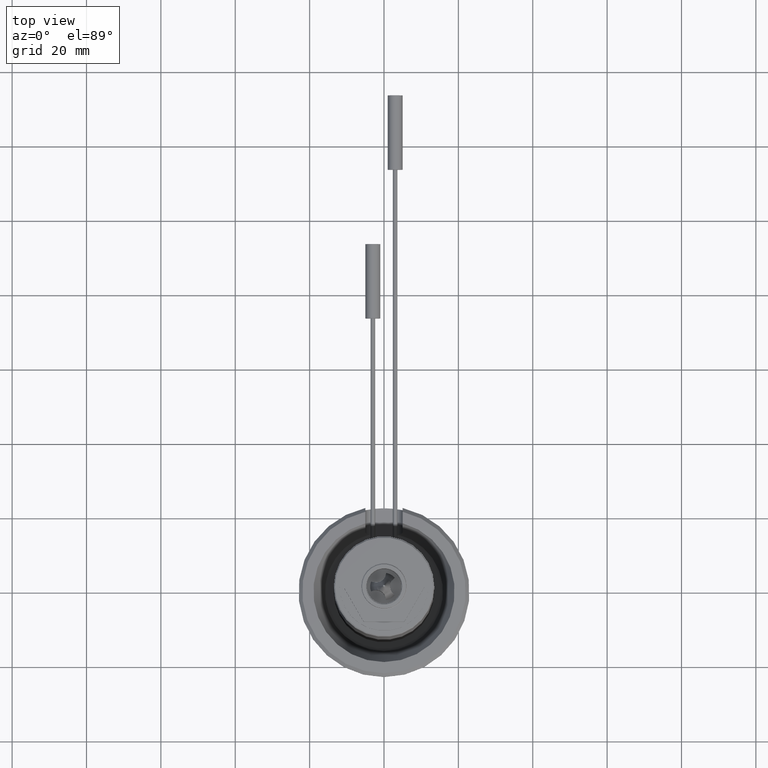
[diagram: clean part render]
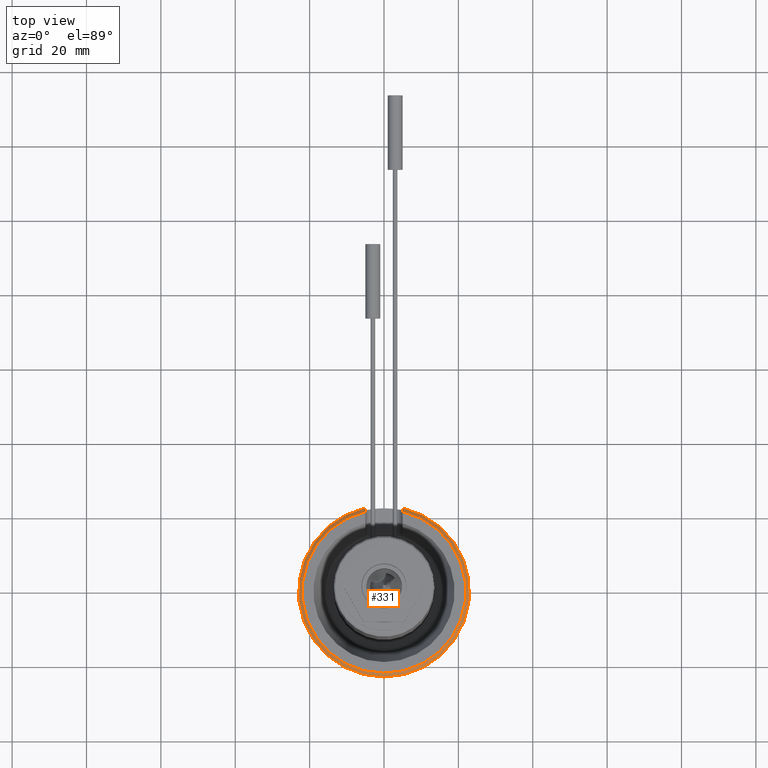
[diagram: same view with one face highlighted and labeled with its STEP entity id]
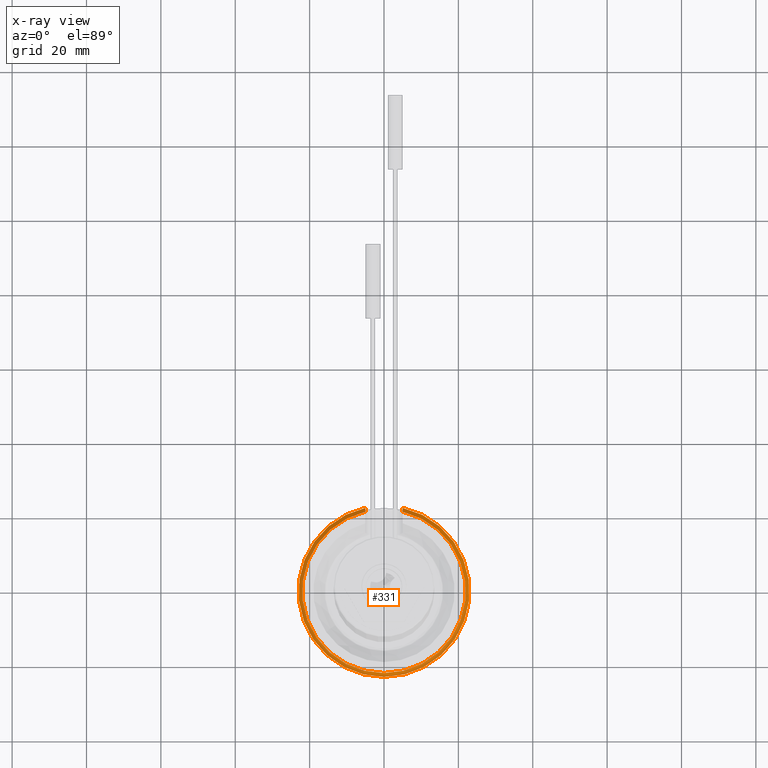
[diagram: x-ray of the same camera — body ghosted, the highlighted face saturated]
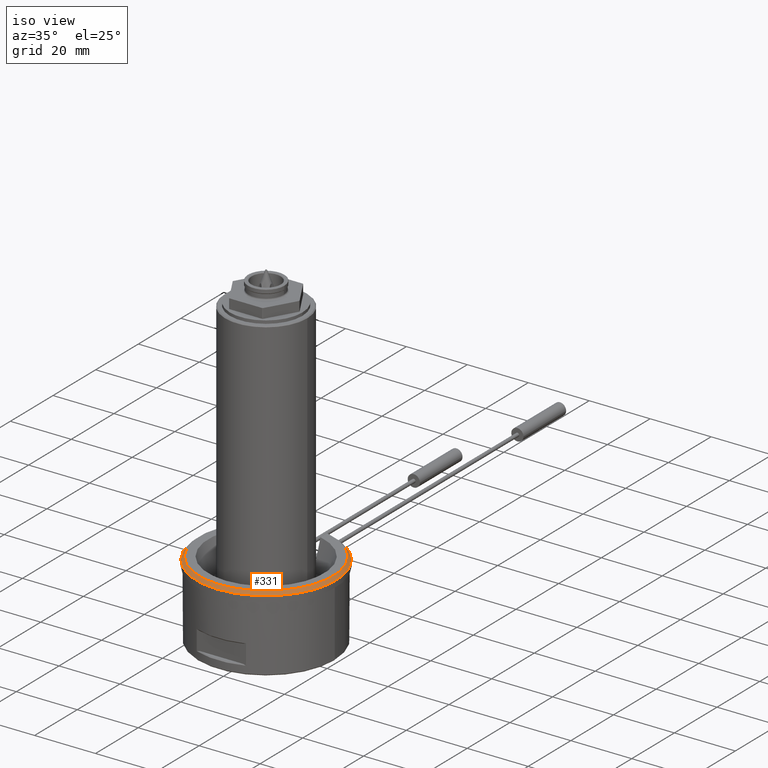
[diagram: same view with one face highlighted and labeled with its STEP entity id]
A machine part, top view. The second image highlights one B-rep face of the part: STEP entity #331.
The next image is the same camera in x-ray: the body ghosted, the highlighted face saturated — about 0% of this face is hidden behind the body in this view.
A second angle (iso view) of the same face is appended — the face is thin or edge-on in the first view.
In plain terms, the highlighted conical surface has half-angle 45 deg.
Its self-contained STEP definition (entity closure, byte-faithful):
#129=CONICAL_SURFACE('',#1237,22.,45.);
#151=B_SPLINE_CURVE_WITH_KNOTS('',3,(#2004,#2005,#2006,#2007),
 .UNSPECIFIED.,.F.,.F.,(4,4),(0.,1.),.UNSPECIFIED.);
#152=B_SPLINE_CURVE_WITH_KNOTS('',3,(#2010,#2011,#2012,#2013),
 .UNSPECIFIED.,.F.,.F.,(4,4),(0.,1.),.UNSPECIFIED.);
#260=FACE_OUTER_BOUND('',#519,.T.);
#331=ADVANCED_FACE('',(#260),#129,.T.);
#519=EDGE_LOOP('',(#775,#776,#777,#778));
#775=ORIENTED_EDGE('',*,*,#1019,.F.);
#776=ORIENTED_EDGE('',*,*,#954,.F.);
#777=ORIENTED_EDGE('',*,*,#1021,.F.);
#778=ORIENTED_EDGE('',*,*,#969,.F.);
#849=VERTEX_POINT('',#1792);
#851=VERTEX_POINT('',#1795);
#861=VERTEX_POINT('',#1874);
#862=VERTEX_POINT('',#1876);
#954=EDGE_CURVE('',#849,#851,#1055,.T.);
#969=EDGE_CURVE('',#861,#862,#1060,.T.);
#1019=EDGE_CURVE('',#851,#861,#151,.T.);
#1021=EDGE_CURVE('',#862,#849,#152,.T.);
#1055=CIRCLE('',#1157,23.);
#1060=CIRCLE('',#1166,22.);
#1157=AXIS2_PLACEMENT_3D('',#1794,#1373,#1374);
#1166=AXIS2_PLACEMENT_3D('',#1875,#1395,#1396);
#1237=AXIS2_PLACEMENT_3D('',#2031,#1552,#1553);
#1373=DIRECTION('',(0.,0.,-1.));
#1374=DIRECTION('',(-1.,0.,0.));
#1395=DIRECTION('',(0.,0.,1.));
#1396=DIRECTION('',(-1.,0.,0.));
#1552=DIRECTION('',(0.,0.,-1.));
#1553=DIRECTION('',(-1.,0.,0.));
#1792=CARTESIAN_POINT('',(4.99999999999504,22.4499443206448,24.));
#1794=CARTESIAN_POINT('',(0.,0.,24.));
#1795=CARTESIAN_POINT('',(-4.99999999999498,22.4499443206448,24.));
#1874=CARTESIAN_POINT('',(-4.99999999999501,21.4242852856297,25.));
#1875=CARTESIAN_POINT('',(0.,0.,25.));
#1876=CARTESIAN_POINT('',(4.999999999995,21.4242852856297,25.));
#2004=CARTESIAN_POINT('',(-4.99999999999498,22.4499443206448,24.));
#2005=CARTESIAN_POINT('',(-4.99999999999498,22.1082461865377,24.3335262645727));
#2006=CARTESIAN_POINT('',(-4.99999999999501,21.7663685016499,24.6668687085708));
#2007=CARTESIAN_POINT('',(-4.99999999999501,21.4242852856297,25.));
#2010=CARTESIAN_POINT('',(4.999999999995,21.4242852856297,25.));
#2011=CARTESIAN_POINT('',(4.999999999995,21.7663685016499,24.6668687085708));
#2012=CARTESIAN_POINT('',(4.99999999999504,22.1082461865377,24.3335262645727));
#2013=CARTESIAN_POINT('',(4.99999999999504,22.4499443206448,24.));
#2031=CARTESIAN_POINT('',(0.,0.,25.));